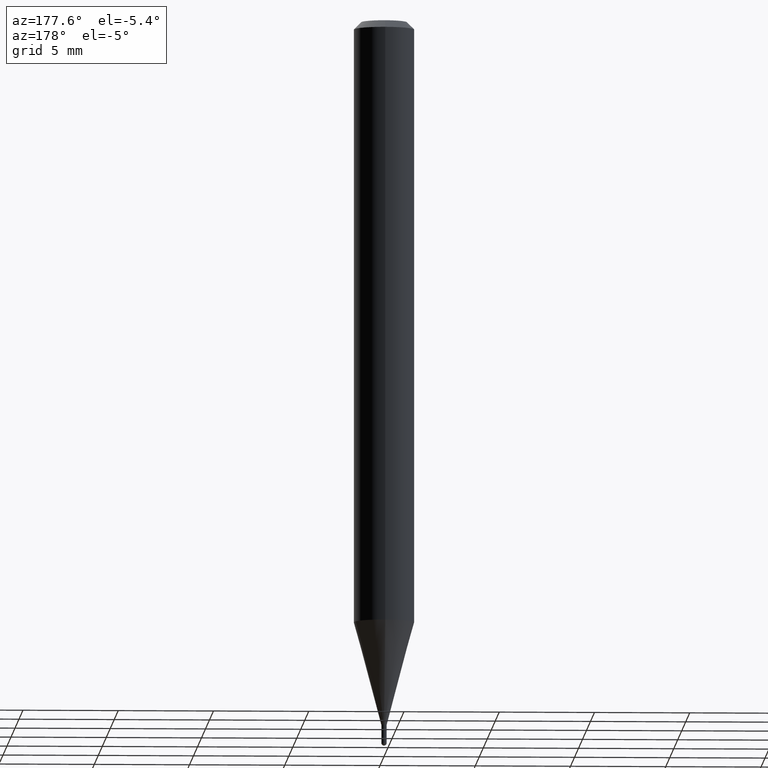
[diagram: clean part render]
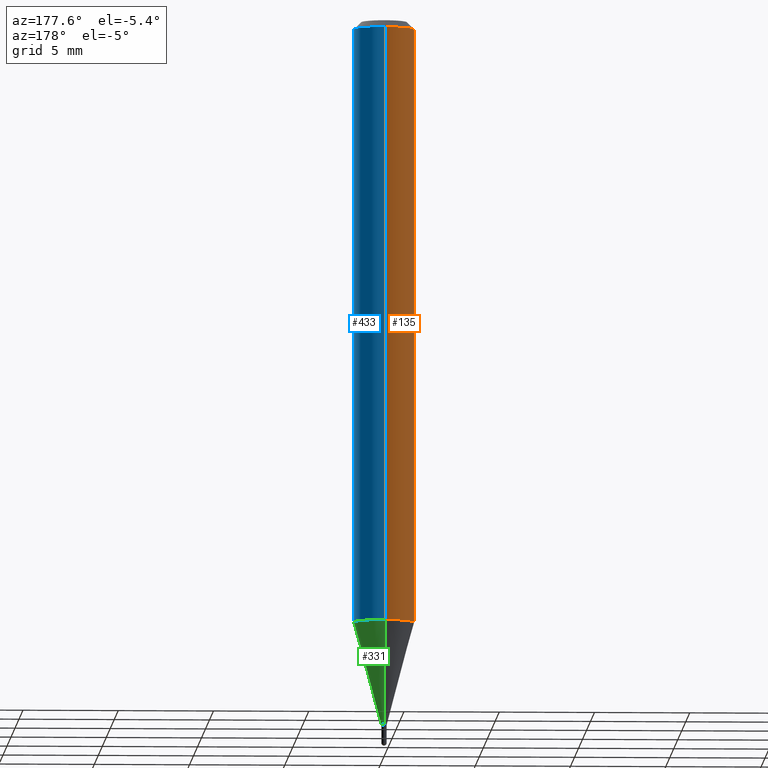
[diagram: same view with three faces highlighted in distinct colors, each labeled with its STEP entity id]
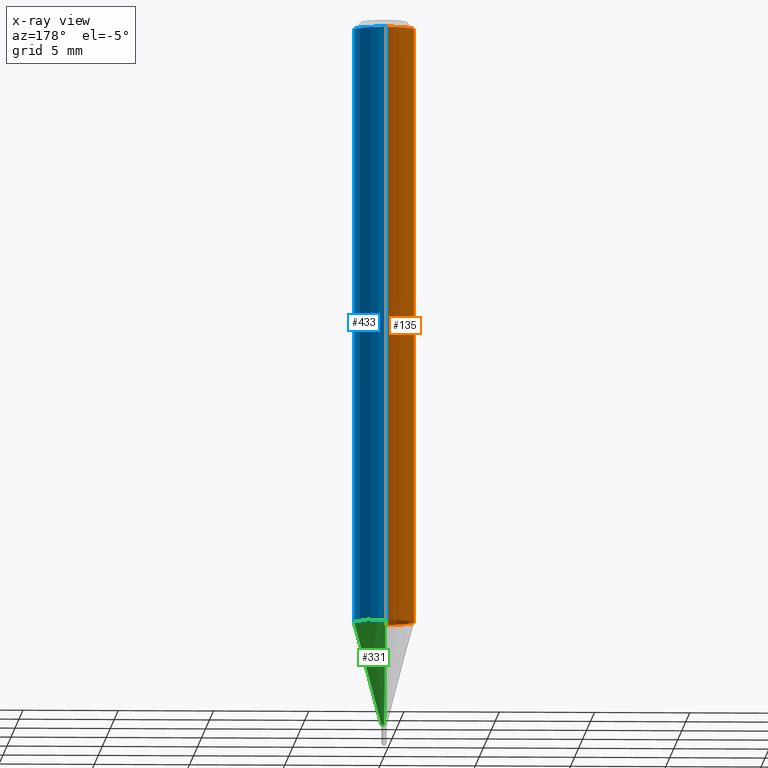
[diagram: x-ray of the same camera — body ghosted, the three highlighted faces saturated]
A machine part, auxiliary view with three faces highlighted in distinct colors.
The next image is the same camera in x-ray (body ghosted, the three faces saturated) — at least one of them is partly hidden behind the body in this view.
Their STEP definitions:

[orange] entity #135 — the highlighted cylindrical surface (edge-blend (fillet) strip) has radius 1.5875 mm, axis along (-0, 0, 1).
#43 = CARTESIAN_POINT ( 'NONE',  ( 3.668219080994673974E-31, -5.237199279062489291E-17, -0.01499999999999976179 ) ) ;
#45 = CARTESIAN_POINT ( 'NONE',  ( 4.440892098500928887E-16, 0.06249999999999563544, -1.244273103968574823 ) ) ;
#48 = AXIS2_PLACEMENT_3D ( 'NONE', #512, #124, #466 ) ;
#49 = CARTESIAN_POINT ( 'NONE',  ( 0.000000000000000000, 0.000000000000000000, 0.000000000000000000 ) ) ;
#52 = EDGE_CURVE ( 'NONE', #256, #423, #346, .T. ) ;
#56 = DIRECTION ( 'NONE',  ( -2.445479387329821699E-29, 3.491466186041714698E-15, 1.000000000000000000 ) ) ;
#76 = ORIENTED_EDGE ( 'NONE', *, *, #161, .T. ) ;
#119 = AXIS2_PLACEMENT_3D ( 'NONE', #43, #379, #304 ) ;
#124 = DIRECTION ( 'NONE',  ( -2.445479387329821699E-29, 3.491466186041715092E-15, 1.000000000000000000 ) ) ;
#126 = DIRECTION ( 'NONE',  ( -2.445479387329821699E-29, 3.491466186041715092E-15, 1.000000000000000000 ) ) ;
#128 = DIRECTION ( 'NONE',  ( -6.982962677686265922E-15, -1.000000000000000000, 3.491466186041715092E-15 ) ) ;
#129 = DIRECTION ( 'NONE',  ( -2.445479387329821699E-29, 3.491466186041714698E-15, 1.000000000000000000 ) ) ;
#135 = ADVANCED_FACE ( 'NONE', ( #310 ), #200, .T. ) ;
#144 = VERTEX_POINT ( 'NONE', #45 ) ;
#149 = AXIS2_PLACEMENT_3D ( 'NONE', #49, #126, #128 ) ;
#152 = ORIENTED_EDGE ( 'NONE', *, *, #313, .F. ) ;
#160 = CARTESIAN_POINT ( 'NONE',  ( -4.364351673553611504E-16, -0.06250000000000434375, -1.244273103968574157 ) ) ;
#161 = EDGE_CURVE ( 'NONE', #191, #423, #309, .T. ) ;
#191 = VERTEX_POINT ( 'NONE', #160 ) ;
#200 = CYLINDRICAL_SURFACE ( 'NONE', #149, 0.06250000000000000000 ) ;
#212 = LINE ( 'NONE', #448, #365 ) ;
#256 = VERTEX_POINT ( 'NONE', #488 ) ;
#280 = CARTESIAN_POINT ( 'NONE',  ( -4.364351673553916201E-16, -0.06250000000000000000, 2.182166366276071933E-16 ) ) ;
#301 = EDGE_CURVE ( 'NONE', #144, #191, #389, .T. ) ;
#304 = DIRECTION ( 'NONE',  ( -6.982962677686265922E-15, -1.000000000000000000, 3.483106191921935554E-15 ) ) ;
#309 = LINE ( 'NONE', #280, #391 ) ;
#310 = FACE_OUTER_BOUND ( 'NONE', #505, .T. ) ;
#313 = EDGE_CURVE ( 'NONE', #144, #256, #212, .T. ) ;
#346 = CIRCLE ( 'NONE', #119, 0.06250000000000000000 ) ;
#365 = VECTOR ( 'NONE', #56, 39.37007874015748143 ) ;
#376 = ORIENTED_EDGE ( 'NONE', *, *, #301, .T. ) ;
#379 = DIRECTION ( 'NONE',  ( -2.445479387329821699E-29, 3.491466186041715092E-15, 1.000000000000000000 ) ) ;
#389 = CIRCLE ( 'NONE', #48, 0.06250000000000000000 ) ;
#391 = VECTOR ( 'NONE', #129, 39.37007874015748143 ) ;
#422 = ORIENTED_EDGE ( 'NONE', *, *, #52, .F. ) ;
#423 = VERTEX_POINT ( 'NONE', #495 ) ;
#448 = CARTESIAN_POINT ( 'NONE',  ( 4.440892098500625669E-16, 0.06250000000000000000, -2.182166366276071933E-16 ) ) ;
#466 = DIRECTION ( 'NONE',  ( -6.982962677686265922E-15, -1.000000000000000000, 4.370956789862821150E-15 ) ) ;
#488 = CARTESIAN_POINT ( 'NONE',  ( 4.440892098500932831E-16, 0.06249999999999995143, -0.01499999999999997863 ) ) ;
#495 = CARTESIAN_POINT ( 'NONE',  ( -4.364351673553912750E-16, -0.06250000000000005551, -0.01499999999999954321 ) ) ;
#505 = EDGE_LOOP ( 'NONE', ( #152, #376, #76, #422 ) ) ;
#512 = CARTESIAN_POINT ( 'NONE',  ( 3.042844227964045116E-29, -4.344337468707445458E-15, -1.244273103968574601 ) ) ;

[blue] entity #433 — the highlighted cylindrical surface (edge-blend (fillet) strip) has radius 1.5875 mm, axis along (-0, 0, 1).
#4 = EDGE_CURVE ( 'NONE', #191, #144, #502, .T. ) ;
#8 = CARTESIAN_POINT ( 'NONE',  ( 3.668219080994673974E-31, -5.237199279062489291E-17, -0.01499999999999976179 ) ) ;
#42 = AXIS2_PLACEMENT_3D ( 'NONE', #8, #477, #436 ) ;
#45 = CARTESIAN_POINT ( 'NONE',  ( 4.440892098500928887E-16, 0.06249999999999563544, -1.244273103968574823 ) ) ;
#56 = DIRECTION ( 'NONE',  ( -2.445479387329821699E-29, 3.491466186041714698E-15, 1.000000000000000000 ) ) ;
#65 = DIRECTION ( 'NONE',  ( -2.445479387329821699E-29, 3.491466186041715092E-15, 1.000000000000000000 ) ) ;
#70 = ORIENTED_EDGE ( 'NONE', *, *, #161, .F. ) ;
#103 = CYLINDRICAL_SURFACE ( 'NONE', #311, 0.06250000000000000000 ) ;
#112 = EDGE_LOOP ( 'NONE', ( #182, #496, #487, #70 ) ) ;
#129 = DIRECTION ( 'NONE',  ( -2.445479387329821699E-29, 3.491466186041714698E-15, 1.000000000000000000 ) ) ;
#144 = VERTEX_POINT ( 'NONE', #45 ) ;
#151 = CARTESIAN_POINT ( 'NONE',  ( 0.000000000000000000, 0.000000000000000000, 0.000000000000000000 ) ) ;
#160 = CARTESIAN_POINT ( 'NONE',  ( -4.364351673553611504E-16, -0.06250000000000434375, -1.244273103968574157 ) ) ;
#161 = EDGE_CURVE ( 'NONE', #191, #423, #309, .T. ) ;
#182 = ORIENTED_EDGE ( 'NONE', *, *, #4, .T. ) ;
#191 = VERTEX_POINT ( 'NONE', #160 ) ;
#196 = CIRCLE ( 'NONE', #42, 0.06250000000000000000 ) ;
#199 = EDGE_CURVE ( 'NONE', #423, #256, #196, .T. ) ;
#212 = LINE ( 'NONE', #448, #365 ) ;
#256 = VERTEX_POINT ( 'NONE', #488 ) ;
#278 = AXIS2_PLACEMENT_3D ( 'NONE', #353, #420, #464 ) ;
#280 = CARTESIAN_POINT ( 'NONE',  ( -4.364351673553916201E-16, -0.06250000000000000000, 2.182166366276071933E-16 ) ) ;
#309 = LINE ( 'NONE', #280, #391 ) ;
#311 = AXIS2_PLACEMENT_3D ( 'NONE', #151, #65, #412 ) ;
#313 = EDGE_CURVE ( 'NONE', #144, #256, #212, .T. ) ;
#353 = CARTESIAN_POINT ( 'NONE',  ( 3.042844227964045116E-29, -4.344337468707445458E-15, -1.244273103968574601 ) ) ;
#365 = VECTOR ( 'NONE', #56, 39.37007874015748143 ) ;
#391 = VECTOR ( 'NONE', #129, 39.37007874015748143 ) ;
#412 = DIRECTION ( 'NONE',  ( -6.982962677686265922E-15, -1.000000000000000000, 3.491466186041715092E-15 ) ) ;
#420 = DIRECTION ( 'NONE',  ( -2.445479387329821699E-29, 3.491466186041715092E-15, 1.000000000000000000 ) ) ;
#423 = VERTEX_POINT ( 'NONE', #495 ) ;
#433 = ADVANCED_FACE ( 'NONE', ( #462 ), #103, .T. ) ;
#436 = DIRECTION ( 'NONE',  ( -6.982962677686265922E-15, -1.000000000000000000, 3.483106191921935554E-15 ) ) ;
#448 = CARTESIAN_POINT ( 'NONE',  ( 4.440892098500625669E-16, 0.06250000000000000000, -2.182166366276071933E-16 ) ) ;
#462 = FACE_OUTER_BOUND ( 'NONE', #112, .T. ) ;
#464 = DIRECTION ( 'NONE',  ( -6.982962677686265922E-15, -1.000000000000000000, 4.370956789862821150E-15 ) ) ;
#477 = DIRECTION ( 'NONE',  ( -2.445479387329821699E-29, 3.491466186041715092E-15, 1.000000000000000000 ) ) ;
#487 = ORIENTED_EDGE ( 'NONE', *, *, #199, .F. ) ;
#488 = CARTESIAN_POINT ( 'NONE',  ( 4.440892098500932831E-16, 0.06249999999999995143, -0.01499999999999997863 ) ) ;
#495 = CARTESIAN_POINT ( 'NONE',  ( -4.364351673553912750E-16, -0.06250000000000005551, -0.01499999999999954321 ) ) ;
#496 = ORIENTED_EDGE ( 'NONE', *, *, #313, .T. ) ;
#502 = CIRCLE ( 'NONE', #278, 0.06250000000000000000 ) ;

[green] entity #331 — the highlighted conical surface has half-angle 15 deg.
#4 = EDGE_CURVE ( 'NONE', #191, #144, #502, .T. ) ;
#6 = VERTEX_POINT ( 'NONE', #237 ) ;
#22 = DIRECTION ( 'NONE',  ( -2.445479387329821699E-29, 3.491466186041715092E-15, 1.000000000000000000 ) ) ;
#23 = DIRECTION ( 'NONE',  ( -6.982962677686265922E-15, -1.000000000000000000, 0.000000000000000000 ) ) ;
#37 = DIRECTION ( 'NONE',  ( -2.445479387329821699E-29, 3.491466186041715092E-15, 1.000000000000000000 ) ) ;
#45 = CARTESIAN_POINT ( 'NONE',  ( 4.440892098500928887E-16, 0.06249999999999563544, -1.244273103968574823 ) ) ;
#47 = DIRECTION ( 'NONE',  ( 1.839019923739600315E-15, 0.2588190451025249583, 0.9659258262890670910 ) ) ;
#51 = EDGE_CURVE ( 'NONE', #6, #191, #431, .T. ) ;
#64 = CARTESIAN_POINT ( 'NONE',  ( 3.563063467339550855E-29, -5.087066233062778433E-15, -1.457000000000000073 ) ) ;
#92 = EDGE_CURVE ( 'NONE', #266, #144, #393, .T. ) ;
#95 = CONICAL_SURFACE ( 'NONE', #158, 0.005499999999999923353, 0.2617993877991502960 ) ;
#96 = FACE_OUTER_BOUND ( 'NONE', #357, .T. ) ;
#113 = CARTESIAN_POINT ( 'NONE',  ( 2.415845301584669169E-16, 0.005499999999994836276, -1.457000000000000073 ) ) ;
#115 = CARTESIAN_POINT ( 'NONE',  ( 3.563063467339550855E-29, -5.087066233062778433E-15, -1.457000000000000073 ) ) ;
#144 = VERTEX_POINT ( 'NONE', #45 ) ;
#158 = AXIS2_PLACEMENT_3D ( 'NONE', #64, #22, #286 ) ;
#160 = CARTESIAN_POINT ( 'NONE',  ( -4.364351673553611504E-16, -0.06250000000000434375, -1.244273103968574157 ) ) ;
#169 = AXIS2_PLACEMENT_3D ( 'NONE', #115, #37, #23 ) ;
#191 = VERTEX_POINT ( 'NONE', #160 ) ;
#195 = CARTESIAN_POINT ( 'NONE',  ( -3.840629472723830084E-17, -0.005500000000005010430, -1.457000000000000073 ) ) ;
#237 = CARTESIAN_POINT ( 'NONE',  ( -3.840629472723830084E-17, -0.005500000000005010430, -1.457000000000000073 ) ) ;
#241 = ORIENTED_EDGE ( 'NONE', *, *, #4, .F. ) ;
#266 = VERTEX_POINT ( 'NONE', #113 ) ;
#275 = DIRECTION ( 'NONE',  ( -1.807323732225330139E-15, -0.2588190451025181860, 0.9659258262890689783 ) ) ;
#278 = AXIS2_PLACEMENT_3D ( 'NONE', #353, #420, #464 ) ;
#286 = DIRECTION ( 'NONE',  ( -6.982962677686265922E-15, -1.000000000000000000, 0.000000000000000000 ) ) ;
#321 = VECTOR ( 'NONE', #47, 39.37007874015748143 ) ;
#331 = ADVANCED_FACE ( 'NONE', ( #96 ), #95, .T. ) ;
#350 = ORIENTED_EDGE ( 'NONE', *, *, #484, .T. ) ;
#353 = CARTESIAN_POINT ( 'NONE',  ( 3.042844227964045116E-29, -4.344337468707445458E-15, -1.244273103968574601 ) ) ;
#355 = VECTOR ( 'NONE', #275, 39.37007874015748143 ) ;
#357 = EDGE_LOOP ( 'NONE', ( #350, #463, #241, #424 ) ) ;
#383 = CIRCLE ( 'NONE', #169, 0.005499999999999923353 ) ;
#393 = LINE ( 'NONE', #476, #321 ) ;
#420 = DIRECTION ( 'NONE',  ( -2.445479387329821699E-29, 3.491466186041715092E-15, 1.000000000000000000 ) ) ;
#424 = ORIENTED_EDGE ( 'NONE', *, *, #51, .F. ) ;
#431 = LINE ( 'NONE', #195, #355 ) ;
#463 = ORIENTED_EDGE ( 'NONE', *, *, #92, .T. ) ;
#464 = DIRECTION ( 'NONE',  ( -6.982962677686265922E-15, -1.000000000000000000, 4.370956789862821150E-15 ) ) ;
#476 = CARTESIAN_POINT ( 'NONE',  ( 3.907985046684058761E-17, 0.005499999999994836276, -1.457000000000000073 ) ) ;
#484 = EDGE_CURVE ( 'NONE', #6, #266, #383, .T. ) ;
#502 = CIRCLE ( 'NONE', #278, 0.06250000000000000000 ) ;